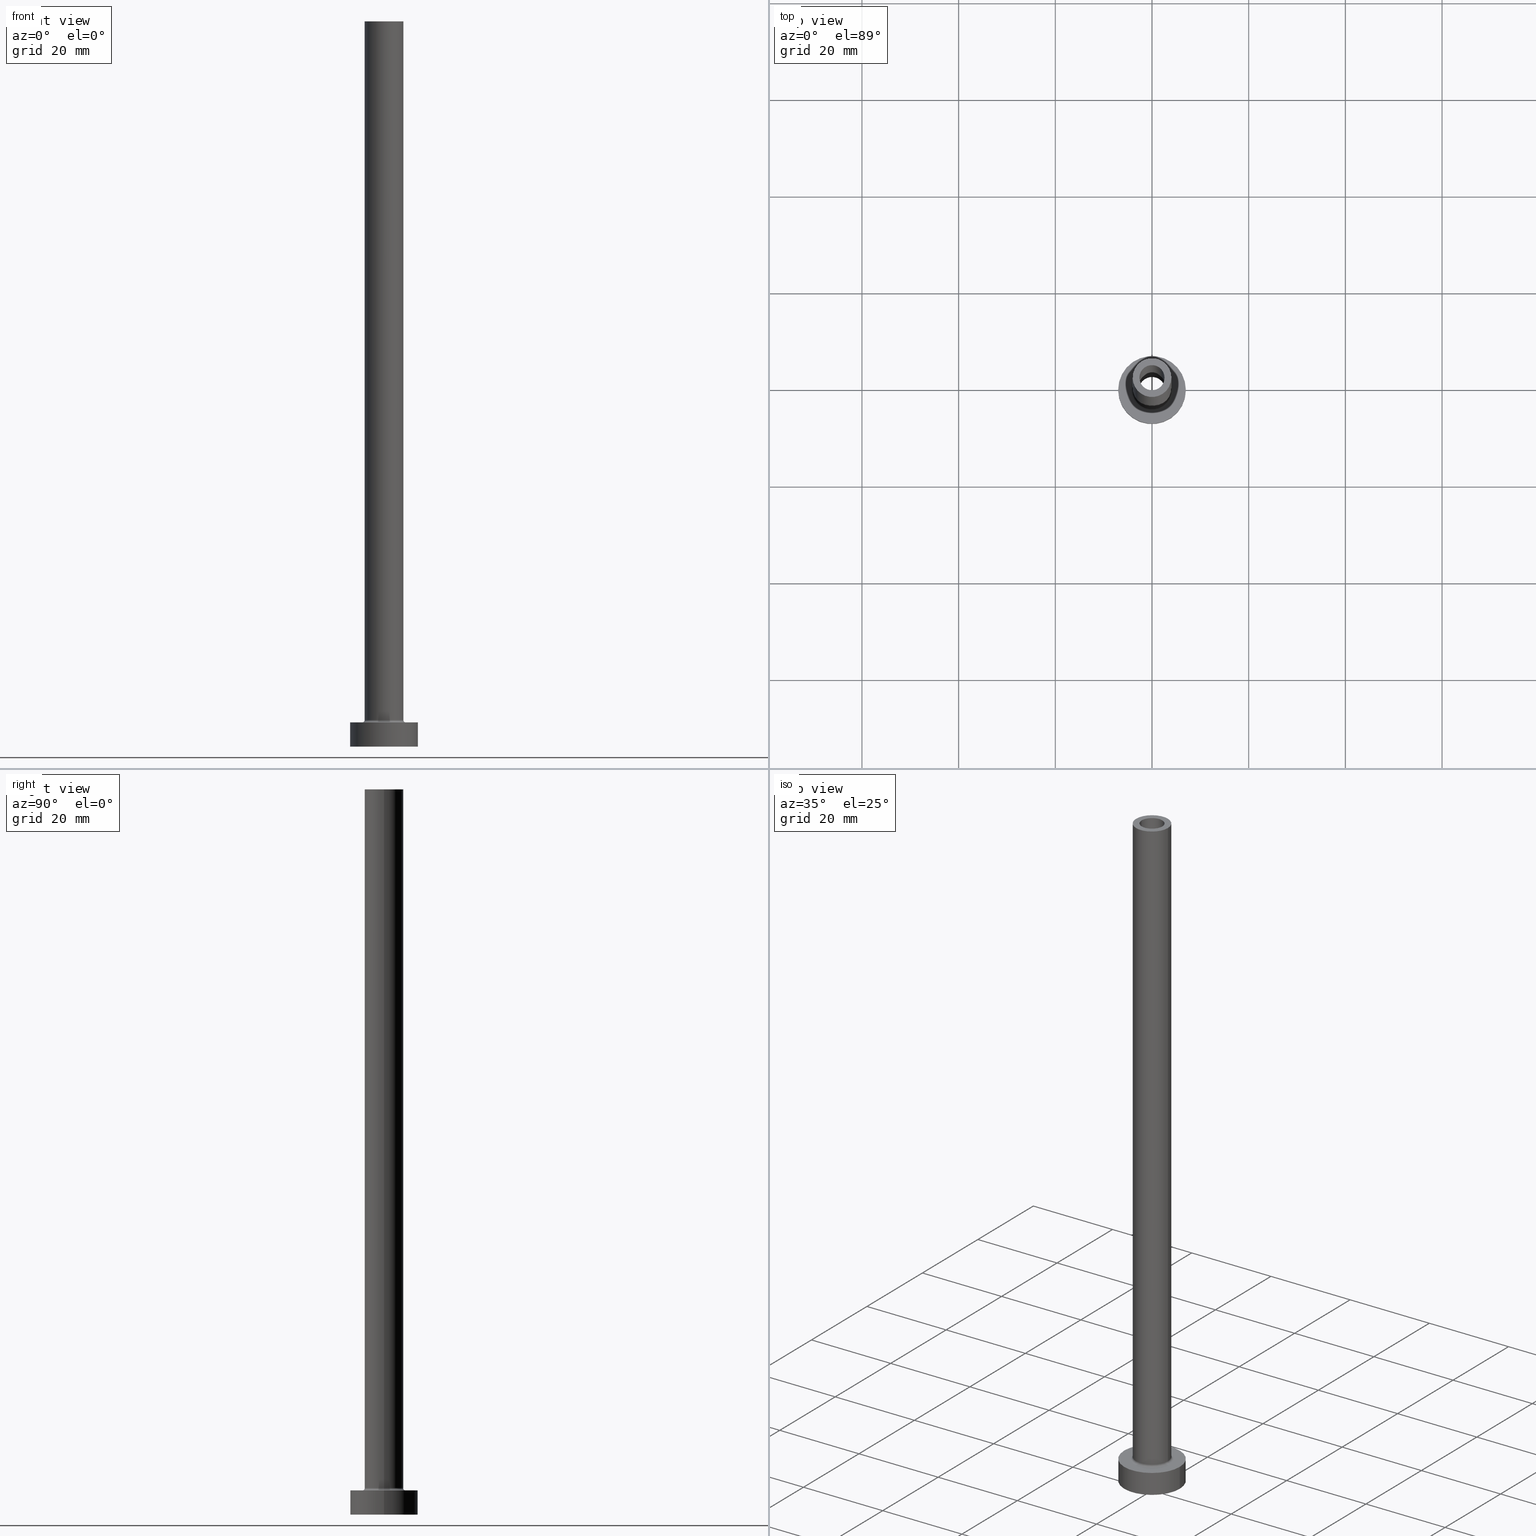
[diagram: canonical four-view strip — front | top / right | iso, engineering-drawing reading convention]
A machine part, canonical four-view strip (front | top / right | iso — engineering-drawing reading convention). The complete STEP part file that produces these views, byte-faithful:
ISO-10303-21;
HEADER;
FILE_DESCRIPTION (( 'STEP AP203' ),
    '1' );
FILE_NAME ('1370.STEP',
    '2023-02-13T10:11:51',
    ( '' ),
    ( '' ),
    'SwSTEP 2.0',
    'SolidWorks 2019',
    '' );
FILE_SCHEMA (( 'CONFIG_CONTROL_DESIGN' ));
ENDSEC;

DATA;
#1 = CARTESIAN_POINT ( 'NONE',  ( 0.000000000000000000, 0.000000000000000000, 112.7781745930520145 ) ) ;
#2 = CC_DESIGN_PERSON_AND_ORGANIZATION_ASSIGNMENT ( #206, #37, ( #59 ) ) ;
#3 = DATE_TIME_ROLE ( 'creation_date' ) ;
#4 = PERSON_AND_ORGANIZATION_ROLE ( 'creator' ) ;
#5 = AXIS2_PLACEMENT_3D ( 'NONE', #391, #203, #311 ) ;
#6 = DIRECTION ( 'NONE',  ( 1.000000000000000000, 0.000000000000000000, -0.000000000000000000 ) ) ;
#7 = DIRECTION ( 'NONE',  ( 1.000000000000000000, 0.000000000000000000, 0.000000000000000000 ) ) ;
#8 = DIRECTION ( 'NONE',  ( -0.000000000000000000, -0.000000000000000000, -1.000000000000000000 ) ) ;
#9 = ORIENTED_EDGE ( 'NONE', *, *, #221, .T. ) ;
#10 = ADVANCED_FACE ( 'NONE', ( #260 ), #224, .F. ) ;
#11 = AXIS2_PLACEMENT_3D ( 'NONE', #190, #47, #333 ) ;
#12 = FACE_BOUND ( 'NONE', #216, .T. ) ;
#13 = EDGE_CURVE ( 'NONE', #273, #239, #70, .T. ) ;
#14 = DIRECTION ( 'NONE',  ( 0.000000000000000000, 0.000000000000000000, -1.000000000000000000 ) ) ;
#15 = DIRECTION ( 'NONE',  ( 0.000000000000000000, 0.000000000000000000, -1.000000000000000000 ) ) ;
#16 = VERTEX_POINT ( 'NONE', #113 ) ;
#17 = ORIENTED_EDGE ( 'NONE', *, *, #166, .T. ) ;
#18 = ORIENTED_EDGE ( 'NONE', *, *, #449, .F. ) ;
#19 = PRODUCT ( '1370', '1370', '', ( #247 ) ) ;
#20 = MANIFOLD_SOLID_BREP ( 'Odebrat vysunut�m4', #413 ) ;
#21 = CARTESIAN_POINT ( 'NONE',  ( -4.000000000000000000, 0.000000000000000000, 150.0000000000000000 ) ) ;
#22 = AXIS2_PLACEMENT_3D ( 'NONE', #354, #320, #288 ) ;
#23 = VECTOR ( 'NONE', #328, 1000.000000000000000 ) ;
#24 = VERTEX_POINT ( 'NONE', #294 ) ;
#25 = CYLINDRICAL_SURFACE ( 'NONE', #455, 2.750000000000000000 ) ;
#26 = DIRECTION ( 'NONE',  ( 1.000000000000000000, 0.000000000000000000, 0.000000000000000000 ) ) ;
#27 = CARTESIAN_POINT ( 'NONE',  ( 4.000000000000000000, 4.898587196589412829E-16, 150.0000000000000000 ) ) ;
#28 = FACE_OUTER_BOUND ( 'NONE', #29, .T. ) ;
#29 = EDGE_LOOP ( 'NONE', ( #262, #278, #376, #243 ) ) ;
#30 = ORIENTED_EDGE ( 'NONE', *, *, #401, .F. ) ;
#31 = CIRCLE ( 'NONE', #422, 2.750000000000000000 ) ;
#32 = CC_DESIGN_APPROVAL ( #198, ( #59 ) ) ;
#33 = FACE_OUTER_BOUND ( 'NONE', #150, .T. ) ;
#34 = EDGE_CURVE ( 'NONE', #397, #344, #330, .T. ) ;
#35 = AXIS2_PLACEMENT_3D ( 'NONE', #364, #253, #77 ) ;
#36 = PERSON_AND_ORGANIZATION ( #439, #339 ) ;
#37 = PERSON_AND_ORGANIZATION_ROLE ( 'design_supplier' ) ;
#38 = DIRECTION ( 'NONE',  ( 0.000000000000000000, 0.000000000000000000, -1.000000000000000000 ) ) ;
#39 = AXIS2_PLACEMENT_3D ( 'NONE', #128, #196, #162 ) ;
#40 = DIRECTION ( 'NONE',  ( 1.000000000000000000, 0.000000000000000000, 0.000000000000000000 ) ) ;
#41 = ADVANCED_FACE ( 'NONE', ( #257 ), #95, .F. ) ;
#42 = DIRECTION ( 'NONE',  ( 0.000000000000000000, 0.000000000000000000, 1.000000000000000000 ) ) ;
#43 = LOCAL_TIME ( 11, 11, 51.00000000000000000, #182 ) ;
#44 = DIRECTION ( 'NONE',  ( 1.000000000000000000, 0.000000000000000000, 0.000000000000000000 ) ) ;
#45 = DIRECTION ( 'NONE',  ( 1.000000000000000000, 0.000000000000000000, -0.000000000000000000 ) ) ;
#46 = ORIENTED_EDGE ( 'NONE', *, *, #154, .F. ) ;
#47 = DIRECTION ( 'NONE',  ( -0.000000000000000000, -0.000000000000000000, -1.000000000000000000 ) ) ;
#48 = DIRECTION ( 'NONE',  ( 0.000000000000000000, 0.000000000000000000, 1.000000000000000000 ) ) ;
#49 = CIRCLE ( 'NONE', #426, 0.5000000000000004441 ) ;
#50 = ADVANCED_FACE ( 'NONE', ( #33 ), #355, .F. ) ;
#51 = CARTESIAN_POINT ( 'NONE',  ( 2.600000000000000089, 3.184081677783117698E-16, 105.0000000000000000 ) ) ;
#52 = ORIENTED_EDGE ( 'NONE', *, *, #362, .T. ) ;
#53 = DIRECTION ( 'NONE',  ( -0.000000000000000000, -0.000000000000000000, -1.000000000000000000 ) ) ;
#54 = VERTEX_POINT ( 'NONE', #217 ) ;
#55 = CARTESIAN_POINT ( 'NONE',  ( 0.000000000000000000, 0.000000000000000000, 112.7781745930520145 ) ) ;
#56 = APPROVAL_STATUS ( 'not_yet_approved' ) ;
#57 = CC_DESIGN_PERSON_AND_ORGANIZATION_ASSIGNMENT ( #214, #4, ( #59 ) ) ;
#58 = DIRECTION ( 'NONE',  ( 1.000000000000000000, 0.000000000000000000, 0.000000000000000000 ) ) ;
#59 = PRODUCT_DEFINITION_FORMATION_WITH_SPECIFIED_SOURCE ( 'LIBOVOLN�', '', #19, .NOT_KNOWN. ) ;
#60 = EDGE_LOOP ( 'NONE', ( #312, #384 ) ) ;
#61 = APPROVAL_DATE_TIME ( #72, #198 ) ;
#62 = ORIENTED_EDGE ( 'NONE', *, *, #212, .F. ) ;
#63 = CYLINDRICAL_SURFACE ( 'NONE', #393, 4.000000000000000000 ) ;
#64 = DIRECTION ( 'NONE',  ( -0.000000000000000000, -0.000000000000000000, -1.000000000000000000 ) ) ;
#65 = DIRECTION ( 'NONE',  ( 1.000000000000000000, 0.000000000000000000, 0.000000000000000000 ) ) ;
#66 = EDGE_CURVE ( 'NONE', #54, #208, #127, .T. ) ;
#67 = DIRECTION ( 'NONE',  ( 1.000000000000000000, 0.000000000000000000, 0.000000000000000000 ) ) ;
#68 = AXIS2_PLACEMENT_3D ( 'NONE', #458, #64, #209 ) ;
#69 = CIRCLE ( 'NONE', #308, 2.600000000000000089 ) ;
#70 = CIRCLE ( 'NONE', #387, 4.500000000000000888 ) ;
#71 = APPROVAL_DATE_TIME ( #180, #338 ) ;
#72 = DATE_AND_TIME ( #99, #43 ) ;
#73 = VERTEX_POINT ( 'NONE', #160 ) ;
#74 = DIRECTION ( 'NONE',  ( -1.000000000000000000, 0.000000000000000000, 0.000000000000000000 ) ) ;
#75 = ADVANCED_FACE ( 'NONE', ( #272 ), #63, .T. ) ;
#76 = CIRCLE ( 'NONE', #255, 2.750000000000000000 ) ;
#77 = DIRECTION ( 'NONE',  ( 1.000000000000000000, 0.000000000000000000, 0.000000000000000000 ) ) ;
#78 = FACE_OUTER_BOUND ( 'NONE', #363, .T. ) ;
#79 = ORIENTED_EDGE ( 'NONE', *, *, #390, .T. ) ;
#80 = CARTESIAN_POINT ( 'NONE',  ( 0.000000000000000000, 0.000000000000000000, 5.000000000000000000 ) ) ;
#81 = CARTESIAN_POINT ( 'NONE',  ( -4.000000000000000000, 0.000000000000000000, 5.500000000000005329 ) ) ;
#82 = ADVANCED_FACE ( 'NONE', ( #277 ), #25, .F. ) ;
#83 = FACE_OUTER_BOUND ( 'NONE', #163, .T. ) ;
#84 = VECTOR ( 'NONE', #8, 1000.000000000000000 ) ;
#85 = DIRECTION ( 'NONE',  ( -0.000000000000000000, -0.000000000000000000, -1.000000000000000000 ) ) ;
#86 = LINE ( 'NONE', #446, #84 ) ;
#87 = VERTEX_POINT ( 'NONE', #460 ) ;
#88 = DIRECTION ( 'NONE',  ( 1.000000000000000000, 0.000000000000000000, -0.000000000000000000 ) ) ;
#89 = ORIENTED_EDGE ( 'NONE', *, *, #323, .F. ) ;
#90 = CARTESIAN_POINT ( 'NONE',  ( 0.000000000000000000, 0.000000000000000000, 5.000000000000000000 ) ) ;
#91 = EDGE_CURVE ( 'NONE', #208, #54, #188, .T. ) ;
#92 = LINE ( 'NONE', #407, #158 ) ;
#93 = AXIS2_PLACEMENT_3D ( 'NONE', #156, #48, #26 ) ;
#94 = ORIENTED_EDGE ( 'NONE', *, *, #459, .F. ) ;
#95 = TOROIDAL_SURFACE ( 'NONE', #205, 4.500000000000000888, 0.5000000000000000000 ) ;
#96 = LINE ( 'NONE', #379, #101 ) ;
#97 = EDGE_CURVE ( 'NONE', #344, #351, #92, .T. ) ;
#98 = DATE_AND_TIME ( #142, #359 ) ;
#99 = CALENDAR_DATE ( 2023, 13, 2 ) ;
#100 = CARTESIAN_POINT ( 'NONE',  ( 0.000000000000000000, 0.000000000000000000, 0.000000000000000000 ) ) ;
#101 = VECTOR ( 'NONE', #53, 1000.000000000000000 ) ;
#102 = AXIS2_PLACEMENT_3D ( 'NONE', #325, #222, #335 ) ;
#103 = ORIENTED_EDGE ( 'NONE', *, *, #323, .T. ) ;
#104 = DIRECTION ( 'NONE',  ( 1.000000000000000000, 0.000000000000000000, 0.000000000000000000 ) ) ;
#105 = APPROVAL_DATE_TIME ( #383, #227 ) ;
#106 = CIRCLE ( 'NONE', #39, 2.600000000000000089 ) ;
#107 = EDGE_LOOP ( 'NONE', ( #450, #89 ) ) ;
#108 = UNCERTAINTY_MEASURE_WITH_UNIT (LENGTH_MEASURE( 1.000000000000000082E-05 ), #334, 'distance_accuracy_value', 'NONE');
#109 = APPLICATION_PROTOCOL_DEFINITION ( 'international standard', 'config_control_design', 1994, #357 ) ;
#110 = CYLINDRICAL_SURFACE ( 'NONE', #452, 2.600000000000000089 ) ;
#111 = EDGE_CURVE ( 'NONE', #24, #172, #31, .T. ) ;
#112 = PERSON_AND_ORGANIZATION_ROLE ( 'classification_officer' ) ;
#113 = CARTESIAN_POINT ( 'NONE',  ( -2.600000000000000089, 0.000000000000000000, 105.0000000000000000 ) ) ;
#114 = AXIS2_PLACEMENT_3D ( 'NONE', #417, #341, #358 ) ;
#115 = DIRECTION ( 'NONE',  ( 0.000000000000000000, 0.000000000000000000, -1.000000000000000000 ) ) ;
#116 = ORIENTED_EDGE ( 'NONE', *, *, #178, .F. ) ;
#117 = DIRECTION ( 'NONE',  ( 0.000000000000000000, 0.000000000000000000, -1.000000000000000000 ) ) ;
#118 = CIRCLE ( 'NONE', #139, 4.500000000000000888 ) ;
#119 = ORIENTED_EDGE ( 'NONE', *, *, #274, .F. ) ;
#120 = AXIS2_PLACEMENT_3D ( 'NONE', #1, #250, #74 ) ;
#121 = DIRECTION ( 'NONE',  ( -1.000000000000000000, 0.000000000000000000, 0.000000000000000000 ) ) ;
#122 = DIRECTION ( 'NONE',  ( 0.000000000000000000, 0.000000000000000000, 1.000000000000000000 ) ) ;
#123 = ADVANCED_FACE ( 'NONE', ( #28 ), #425, .T. ) ;
#124 = PRODUCT_DEFINITION_SHAPE ( 'NONE', 'NONE',  #252 ) ;
#125 = EDGE_LOOP ( 'NONE', ( #193, #200 ) ) ;
#126 = VERTEX_POINT ( 'NONE', #132 ) ;
#127 = CIRCLE ( 'NONE', #305, 4.000000000000000000 ) ;
#128 = CARTESIAN_POINT ( 'NONE',  ( 0.000000000000000000, 0.000000000000000000, 150.0000000000000000 ) ) ;
#129 = DIRECTION ( 'NONE',  ( -1.000000000000000000, 0.000000000000000000, 0.000000000000000000 ) ) ;
#130 = CC_DESIGN_APPROVAL ( #338, ( #233 ) ) ;
#131 = CARTESIAN_POINT ( 'NONE',  ( -4.500000000000000888, 5.510910596163088569E-16, 5.000000000000002665 ) ) ;
#132 = CARTESIAN_POINT ( 'NONE',  ( 7.000000000000000000, 8.572527594031473190E-16, 0.000000000000000000 ) ) ;
#133 = ADVANCED_FACE ( 'NONE', ( #165, #299 ), #263, .F. ) ;
#134 = ORIENTED_EDGE ( 'NONE', *, *, #111, .F. ) ;
#135 = COORDINATED_UNIVERSAL_TIME_OFFSET ( 1, 0, .AHEAD. ) ;
#136 = ORIENTED_EDGE ( 'NONE', *, *, #362, .F. ) ;
#137 = CALENDAR_DATE ( 2023, 13, 2 ) ;
#138 = CC_DESIGN_DATE_AND_TIME_ASSIGNMENT ( #98, #3, ( #252 ) ) ;
#139 = AXIS2_PLACEMENT_3D ( 'NONE', #408, #268, #378 ) ;
#140 = LINE ( 'NONE', #399, #146 ) ;
#141 =( NAMED_UNIT ( * ) SI_UNIT ( $, .STERADIAN. ) SOLID_ANGLE_UNIT ( ) );
#142 = CALENDAR_DATE ( 2023, 13, 2 ) ;
#143 = ORIENTED_EDGE ( 'NONE', *, *, #269, .F. ) ;
#144 = CARTESIAN_POINT ( 'NONE',  ( 0.000000000000000000, 0.000000000000000000, 150.0000000000000000 ) ) ;
#145 = ADVANCED_FACE ( 'NONE', ( #12, #254 ), #148, .T. ) ;
#146 = VECTOR ( 'NONE', #241, 1000.000000000000000 ) ;
#147 = VECTOR ( 'NONE', #117, 1000.000000000000000 ) ;
#148 = PLANE ( 'NONE',  #403 ) ;
#149 = EDGE_LOOP ( 'NONE', ( #143, #245, #223, #226 ) ) ;
#150 = EDGE_LOOP ( 'NONE', ( #46, #234, #349, #52 ) ) ;
#151 = CYLINDRICAL_SURFACE ( 'NONE', #225, 7.000000000000000000 ) ;
#152 = FACE_OUTER_BOUND ( 'NONE', #149, .T. ) ;
#153 = ORIENTED_EDGE ( 'NONE', *, *, #390, .F. ) ;
#154 = EDGE_CURVE ( 'NONE', #172, #73, #372, .T. ) ;
#155 = LOCAL_TIME ( 11, 11, 51.00000000000000000, #201 ) ;
#156 = CARTESIAN_POINT ( 'NONE',  ( 0.000000000000000000, 0.000000000000000000, 5.500000000000005329 ) ) ;
#157 = VECTOR ( 'NONE', #14, 1000.000000000000000 ) ;
#158 = VECTOR ( 'NONE', #229, 1000.000000000000000 ) ;
#159 = EDGE_LOOP ( 'NONE', ( #9, #17 ) ) ;
#160 = CARTESIAN_POINT ( 'NONE',  ( 2.750000000000000000, 3.367778697655221012E-16, 0.000000000000000000 ) ) ;
#161 = ADVANCED_BREP_SHAPE_REPRESENTATION ( '1370', ( #20, #296 ), #286 ) ;
#162 = DIRECTION ( 'NONE',  ( 1.000000000000000000, 0.000000000000000000, 0.000000000000000000 ) ) ;
#163 = EDGE_LOOP ( 'NONE', ( #134, #94 ) ) ;
#164 = CARTESIAN_POINT ( 'NONE',  ( 0.000000000000000000, 0.000000000000000000, 5.500000000000005329 ) ) ;
#165 = FACE_BOUND ( 'NONE', #177, .T. ) ;
#166 = EDGE_CURVE ( 'NONE', #412, #371, #197, .T. ) ;
#167 = DIRECTION ( 'NONE',  ( 0.000000000000000000, 0.000000000000000000, 1.000000000000000000 ) ) ;
#168 = AXIS2_PLACEMENT_3D ( 'NONE', #195, #231, #88 ) ;
#169 = DIRECTION ( 'NONE',  ( 0.000000000000000000, 0.000000000000000000, -1.000000000000000000 ) ) ;
#170 = ORIENTED_EDGE ( 'NONE', *, *, #66, .T. ) ;
#171 = DIRECTION ( 'NONE',  ( 1.000000000000000000, 0.000000000000000000, 0.000000000000000000 ) ) ;
#172 = VERTEX_POINT ( 'NONE', #331 ) ;
#173 = DIRECTION ( 'NONE',  ( -0.000000000000000000, -0.000000000000000000, -1.000000000000000000 ) ) ;
#174 = EDGE_CURVE ( 'NONE', #24, #87, #442, .T. ) ;
#175 = CARTESIAN_POINT ( 'NONE',  ( 4.000000000000000000, 4.898587196589412829E-16, 150.0000000000000000 ) ) ;
#176 = APPROVAL_PERSON_ORGANIZATION ( #430, #227, #249 ) ;
#177 = EDGE_LOOP ( 'NONE', ( #136, #153 ) ) ;
#178 = EDGE_CURVE ( 'NONE', #54, #239, #49, .T. ) ;
#179 = APPROVAL_ROLE ( '' ) ;
#180 = DATE_AND_TIME ( #251, #155 ) ;
#181 = CC_DESIGN_SECURITY_CLASSIFICATION ( #233, ( #59 ) ) ;
#182 = COORDINATED_UNIVERSAL_TIME_OFFSET ( 1, 0, .AHEAD. ) ;
#183 = CARTESIAN_POINT ( 'NONE',  ( 0.000000000000000000, 0.000000000000000000, 5.500000000000005329 ) ) ;
#184 = DIRECTION ( 'NONE',  ( 1.000000000000000000, 0.000000000000000000, 0.000000000000000000 ) ) ;
#185 = ORIENTED_EDGE ( 'NONE', *, *, #380, .T. ) ;
#186 = CARTESIAN_POINT ( 'NONE',  ( 4.500000000000000888, 0.000000000000000000, 5.500000000000005329 ) ) ;
#187 = AXIS2_PLACEMENT_3D ( 'NONE', #443, #445, #40 ) ;
#188 = CIRCLE ( 'NONE', #265, 4.000000000000000000 ) ;
#189 = CARTESIAN_POINT ( 'NONE',  ( 2.750000000000000000, 3.367778697655221012E-16, 112.7781745930520145 ) ) ;
#190 = CARTESIAN_POINT ( 'NONE',  ( 0.000000000000000000, 0.000000000000000000, 0.000000000000000000 ) ) ;
#191 = EDGE_CURVE ( 'NONE', #397, #16, #444, .T. ) ;
#192 = CARTESIAN_POINT ( 'NONE',  ( 0.000000000000000000, 0.000000000000000000, 105.0000000000000000 ) ) ;
#193 = ORIENTED_EDGE ( 'NONE', *, *, #34, .F. ) ;
#194 = AXIS2_PLACEMENT_3D ( 'NONE', #240, #456, #65 ) ;
#195 = CARTESIAN_POINT ( 'NONE',  ( 0.000000000000000000, 0.000000000000000000, 150.0000000000000000 ) ) ;
#196 = DIRECTION ( 'NONE',  ( 0.000000000000000000, 0.000000000000000000, 1.000000000000000000 ) ) ;
#197 = CIRCLE ( 'NONE', #102, 4.000000000000000000 ) ;
#198 = APPROVAL ( #310, 'NEUR�EN�' ) ;
#199 = CARTESIAN_POINT ( 'NONE',  ( -7.000000000000000000, 0.000000000000000000, 0.000000000000000000 ) ) ;
#200 = ORIENTED_EDGE ( 'NONE', *, *, #244, .F. ) ;
#201 = COORDINATED_UNIVERSAL_TIME_OFFSET ( 1, 0, .AHEAD. ) ;
#202 = CIRCLE ( 'NONE', #211, 7.000000000000000000 ) ;
#203 = DIRECTION ( 'NONE',  ( 1.224646799147353207E-16, 1.000000000000000000, -0.000000000000000000 ) ) ;
#204 = EDGE_LOOP ( 'NONE', ( #374, #457, #79, #389 ) ) ;
#205 = AXIS2_PLACEMENT_3D ( 'NONE', #438, #256, #67 ) ;
#206 = PERSON_AND_ORGANIZATION ( #439, #339 ) ;
#207 = ADVANCED_FACE ( 'NONE', ( #152 ), #151, .T. ) ;
#208 = VERTEX_POINT ( 'NONE', #81 ) ;
#209 = DIRECTION ( 'NONE',  ( -1.000000000000000000, 0.000000000000000000, 0.000000000000000000 ) ) ;
#210 = DIRECTION ( 'NONE',  ( 1.000000000000000000, 0.000000000000000000, 0.000000000000000000 ) ) ;
#211 = AXIS2_PLACEMENT_3D ( 'NONE', #409, #381, #210 ) ;
#212 = EDGE_CURVE ( 'NONE', #371, #208, #86, .T. ) ;
#213 = ORIENTED_EDGE ( 'NONE', *, *, #191, .T. ) ;
#214 = PERSON_AND_ORGANIZATION ( #439, #339 ) ;
#215 = CARTESIAN_POINT ( 'NONE',  ( 0.000000000000000000, 0.000000000000000000, 150.0000000000000000 ) ) ;
#216 = EDGE_LOOP ( 'NONE', ( #300, #220 ) ) ;
#217 = CARTESIAN_POINT ( 'NONE',  ( 4.000000000000000000, 4.898587196589412829E-16, 5.500000000000005329 ) ) ;
#218 = CALENDAR_DATE ( 2023, 13, 2 ) ;
#219 = CIRCLE ( 'NONE', #187, 7.000000000000000000 ) ;
#220 = ORIENTED_EDGE ( 'NONE', *, *, #13, .T. ) ;
#221 = EDGE_CURVE ( 'NONE', #371, #412, #329, .T. ) ;
#222 = DIRECTION ( 'NONE',  ( 0.000000000000000000, 0.000000000000000000, 1.000000000000000000 ) ) ;
#223 = ORIENTED_EDGE ( 'NONE', *, *, #401, .T. ) ;
#224 = CYLINDRICAL_SURFACE ( 'NONE', #340, 2.600000000000000089 ) ;
#225 = AXIS2_PLACEMENT_3D ( 'NONE', #302, #405, #303 ) ;
#226 = ORIENTED_EDGE ( 'NONE', *, *, #261, .T. ) ;
#227 = APPROVAL ( #436, 'NEUR�EN�' ) ;
#228 = CARTESIAN_POINT ( 'NONE',  ( 0.000000000000000000, 0.000000000000000000, 5.000000000000000000 ) ) ;
#229 = DIRECTION ( 'NONE',  ( 0.000000000000000000, 0.000000000000000000, -1.000000000000000000 ) ) ;
#230 = CARTESIAN_POINT ( 'NONE',  ( -7.000000000000000000, 0.000000000000000000, 5.000000000000000000 ) ) ;
#231 = DIRECTION ( 'NONE',  ( 0.000000000000000000, 0.000000000000000000, 1.000000000000000000 ) ) ;
#232 = ORIENTED_EDGE ( 'NONE', *, *, #66, .F. ) ;
#233 = SECURITY_CLASSIFICATION ( '', '', #290 ) ;
#234 = ORIENTED_EDGE ( 'NONE', *, *, #459, .T. ) ;
#235 = EDGE_LOOP ( 'NONE', ( #419, #259, #119, #423 ) ) ;
#236 = ORIENTED_EDGE ( 'NONE', *, *, #274, .T. ) ;
#237 = DIRECTION ( 'NONE',  ( 1.000000000000000000, 0.000000000000000000, 0.000000000000000000 ) ) ;
#238 = ADVANCED_FACE ( 'NONE', ( #78 ), #392, .F. ) ;
#239 = VERTEX_POINT ( 'NONE', #309 ) ;
#240 = CARTESIAN_POINT ( 'NONE',  ( 0.000000000000000000, 0.000000000000000000, 0.000000000000000000 ) ) ;
#241 = DIRECTION ( 'NONE',  ( -0.000000000000000000, -0.000000000000000000, -1.000000000000000000 ) ) ;
#242 = VERTEX_POINT ( 'NONE', #307 ) ;
#243 = ORIENTED_EDGE ( 'NONE', *, *, #91, .T. ) ;
#244 = EDGE_CURVE ( 'NONE', #344, #397, #106, .T. ) ;
#245 = ORIENTED_EDGE ( 'NONE', *, *, #414, .F. ) ;
#246 = CIRCLE ( 'NONE', #377, 7.000000000000000000 ) ;
#247 = MECHANICAL_CONTEXT ( 'NONE', #280, 'mechanical' ) ;
#248 = DIRECTION ( 'NONE',  ( 0.000000000000000000, 0.000000000000000000, 1.000000000000000000 ) ) ;
#249 = APPROVAL_ROLE ( '' ) ;
#250 = DIRECTION ( 'NONE',  ( 0.000000000000000000, 0.000000000000000000, -1.000000000000000000 ) ) ;
#251 = CALENDAR_DATE ( 2023, 13, 2 ) ;
#252 = PRODUCT_DEFINITION ( 'NEZN�M�', '', #59, #435 ) ;
#253 = DIRECTION ( 'NONE',  ( 0.000000000000000000, 0.000000000000000000, 1.000000000000000000 ) ) ;
#254 = FACE_OUTER_BOUND ( 'NONE', #60, .T. ) ;
#255 = AXIS2_PLACEMENT_3D ( 'NONE', #284, #317, #104 ) ;
#256 = DIRECTION ( 'NONE',  ( 0.000000000000000000, 0.000000000000000000, 1.000000000000000000 ) ) ;
#257 = FACE_OUTER_BOUND ( 'NONE', #270, .T. ) ;
#258 = CARTESIAN_POINT ( 'NONE',  ( -2.600000000000000089, 0.000000000000000000, 150.0000000000000000 ) ) ;
#259 = ORIENTED_EDGE ( 'NONE', *, *, #97, .T. ) ;
#260 = FACE_OUTER_BOUND ( 'NONE', #297, .T. ) ;
#261 = EDGE_CURVE ( 'NONE', #361, #126, #350, .T. ) ;
#262 = ORIENTED_EDGE ( 'NONE', *, *, #418, .F. ) ;
#263 = PLANE ( 'NONE',  #352 ) ;
#264 = CC_DESIGN_APPROVAL ( #227, ( #252 ) ) ;
#265 = AXIS2_PLACEMENT_3D ( 'NONE', #164, #267, #416 ) ;
#266 = DIRECTION ( 'NONE',  ( 0.000000000000000000, 0.000000000000000000, 1.000000000000000000 ) ) ;
#267 = DIRECTION ( 'NONE',  ( 0.000000000000000000, 0.000000000000000000, 1.000000000000000000 ) ) ;
#268 = DIRECTION ( 'NONE',  ( -0.000000000000000000, -0.000000000000000000, -1.000000000000000000 ) ) ;
#269 = EDGE_CURVE ( 'NONE', #242, #126, #140, .T. ) ;
#270 = EDGE_LOOP ( 'NONE', ( #424, #232, #431, #428 ) ) ;
#271 = CARTESIAN_POINT ( 'NONE',  ( 0.000000000000000000, 0.000000000000000000, 150.0000000000000000 ) ) ;
#272 = FACE_OUTER_BOUND ( 'NONE', #429, .T. ) ;
#273 = VERTEX_POINT ( 'NONE', #131 ) ;
#274 = EDGE_CURVE ( 'NONE', #16, #351, #369, .T. ) ;
#275 = DATE_AND_TIME ( #137, #441 ) ;
#276 = ORIENTED_EDGE ( 'NONE', *, *, #418, .T. ) ;
#277 = FACE_OUTER_BOUND ( 'NONE', #204, .T. ) ;
#278 = ORIENTED_EDGE ( 'NONE', *, *, #221, .F. ) ;
#279 = CIRCLE ( 'NONE', #5, 0.5000000000000004441 ) ;
#280 = APPLICATION_CONTEXT ( 'configuration controlled 3d designs of mechanical parts and assemblies' ) ;
#281 = DIRECTION ( 'NONE',  ( -0.000000000000000000, -0.000000000000000000, -1.000000000000000000 ) ) ;
#282 = CARTESIAN_POINT ( 'NONE',  ( -2.600000000000000089, 0.000000000000000000, 150.0000000000000000 ) ) ;
#283 = CC_DESIGN_PERSON_AND_ORGANIZATION_ASSIGNMENT ( #36, #386, ( #252 ) ) ;
#284 = CARTESIAN_POINT ( 'NONE',  ( 0.000000000000000000, 0.000000000000000000, 105.0000000000000000 ) ) ;
#285 = ORIENTED_EDGE ( 'NONE', *, *, #375, .T. ) ;
#286 =( GEOMETRIC_REPRESENTATION_CONTEXT ( 3 ) GLOBAL_UNCERTAINTY_ASSIGNED_CONTEXT ( ( #108 ) ) GLOBAL_UNIT_ASSIGNED_CONTEXT ( ( #334, #382, #141 ) ) REPRESENTATION_CONTEXT ( 'NONE', 'WORKASPACE' ) );
#287 = APPLICATION_PROTOCOL_DEFINITION ( 'international standard', 'config_control_design', 1994, #280 ) ;
#288 = DIRECTION ( 'NONE',  ( 1.000000000000000000, 0.000000000000000000, 0.000000000000000000 ) ) ;
#289 = ORIENTED_EDGE ( 'NONE', *, *, #166, .F. ) ;
#290 = SECURITY_CLASSIFICATION_LEVEL ( 'unclassified' ) ;
#291 = DIRECTION ( 'NONE',  ( -1.000000000000000000, 0.000000000000000000, 0.000000000000000000 ) ) ;
#292 = CC_DESIGN_PERSON_AND_ORGANIZATION_ASSIGNMENT ( #356, #112, ( #233 ) ) ;
#293 = FACE_OUTER_BOUND ( 'NONE', #159, .T. ) ;
#294 = CARTESIAN_POINT ( 'NONE',  ( -2.750000000000000000, 0.000000000000000000, 105.0000000000000000 ) ) ;
#295 = DIRECTION ( 'NONE',  ( 0.000000000000000000, 0.000000000000000000, 1.000000000000000000 ) ) ;
#296 = AXIS2_PLACEMENT_3D ( 'NONE', #100, #319, #7 ) ;
#297 = EDGE_LOOP ( 'NONE', ( #451, #304, #213, #388 ) ) ;
#298 = ORIENTED_EDGE ( 'NONE', *, *, #91, .F. ) ;
#299 = FACE_OUTER_BOUND ( 'NONE', #107, .T. ) ;
#300 = ORIENTED_EDGE ( 'NONE', *, *, #348, .T. ) ;
#301 = DIRECTION ( 'NONE',  ( 0.000000000000000000, 0.000000000000000000, 1.000000000000000000 ) ) ;
#302 = CARTESIAN_POINT ( 'NONE',  ( 0.000000000000000000, 0.000000000000000000, 5.000000000000000000 ) ) ;
#303 = DIRECTION ( 'NONE',  ( -1.000000000000000000, 0.000000000000000000, 0.000000000000000000 ) ) ;
#304 = ORIENTED_EDGE ( 'NONE', *, *, #244, .T. ) ;
#305 = AXIS2_PLACEMENT_3D ( 'NONE', #183, #301, #332 ) ;
#306 = ADVANCED_FACE ( 'NONE', ( #434 ), #110, .F. ) ;
#307 = CARTESIAN_POINT ( 'NONE',  ( 7.000000000000000000, 8.572527594031473190E-16, 5.000000000000000000 ) ) ;
#308 = AXIS2_PLACEMENT_3D ( 'NONE', #342, #167, #58 ) ;
#309 = CARTESIAN_POINT ( 'NONE',  ( 4.500000000000000888, 0.000000000000000000, 5.000000000000002665 ) ) ;
#310 = APPROVAL_STATUS ( 'not_yet_approved' ) ;
#311 = DIRECTION ( 'NONE',  ( -1.000000000000000000, 1.224646799147351482E-16, 0.000000000000000000 ) ) ;
#312 = ORIENTED_EDGE ( 'NONE', *, *, #414, .T. ) ;
#313 = FACE_BOUND ( 'NONE', #336, .T. ) ;
#314 = ADVANCED_FACE ( 'NONE', ( #373 ), #404, .T. ) ;
#315 = AXIS2_PLACEMENT_3D ( 'NONE', #144, #402, #184 ) ;
#316 = COORDINATED_UNIVERSAL_TIME_OFFSET ( 1, 0, .AHEAD. ) ;
#317 = DIRECTION ( 'NONE',  ( 0.000000000000000000, 0.000000000000000000, 1.000000000000000000 ) ) ;
#318 = CARTESIAN_POINT ( 'NONE',  ( 0.000000000000000000, 0.000000000000000000, 105.0000000000000000 ) ) ;
#319 = DIRECTION ( 'NONE',  ( 0.000000000000000000, 0.000000000000000000, 1.000000000000000000 ) ) ;
#320 = DIRECTION ( 'NONE',  ( 0.000000000000000000, 0.000000000000000000, 1.000000000000000000 ) ) ;
#321 = APPROVAL_PERSON_ORGANIZATION ( #396, #198, #179 ) ;
#322 = SHAPE_DEFINITION_REPRESENTATION ( #124, #161 ) ;
#323 = EDGE_CURVE ( 'NONE', #126, #361, #219, .T. ) ;
#324 = FACE_BOUND ( 'NONE', #125, .T. ) ;
#325 = CARTESIAN_POINT ( 'NONE',  ( 0.000000000000000000, 0.000000000000000000, 150.0000000000000000 ) ) ;
#326 = DIRECTION ( 'NONE',  ( 1.000000000000000000, 0.000000000000000000, -0.000000000000000000 ) ) ;
#327 = PRODUCT_RELATED_PRODUCT_CATEGORY ( 'detail', '', ( #19 ) ) ;
#328 = DIRECTION ( 'NONE',  ( 0.000000000000000000, 0.000000000000000000, -1.000000000000000000 ) ) ;
#329 = CIRCLE ( 'NONE', #315, 4.000000000000000000 ) ;
#330 = CIRCLE ( 'NONE', #35, 2.600000000000000089 ) ;
#331 = CARTESIAN_POINT ( 'NONE',  ( 2.750000000000000000, 3.367778697655221012E-16, 105.0000000000000000 ) ) ;
#332 = DIRECTION ( 'NONE',  ( 1.000000000000000000, 0.000000000000000000, 0.000000000000000000 ) ) ;
#333 = DIRECTION ( 'NONE',  ( 1.000000000000000000, 0.000000000000000000, 0.000000000000000000 ) ) ;
#334 =( LENGTH_UNIT ( ) NAMED_UNIT ( * ) SI_UNIT ( .MILLI., .METRE. ) );
#335 = DIRECTION ( 'NONE',  ( 1.000000000000000000, 0.000000000000000000, 0.000000000000000000 ) ) ;
#336 = EDGE_LOOP ( 'NONE', ( #236, #285 ) ) ;
#337 = CARTESIAN_POINT ( 'NONE',  ( 2.600000000000000089, 3.184081677783117698E-16, 150.0000000000000000 ) ) ;
#338 = APPROVAL ( #56, 'NEUR�EN�' ) ;
#339 = ORGANIZATION ( 'NEUR�EN�', 'NEUR�EN�', '' ) ;
#340 = AXIS2_PLACEMENT_3D ( 'NONE', #415, #15, #121 ) ;
#341 = DIRECTION ( 'NONE',  ( 0.000000000000000000, 0.000000000000000000, 1.000000000000000000 ) ) ;
#342 = CARTESIAN_POINT ( 'NONE',  ( 0.000000000000000000, 0.000000000000000000, 105.0000000000000000 ) ) ;
#343 = ADVANCED_FACE ( 'NONE', ( #324, #293 ), #400, .T. ) ;
#344 = VERTEX_POINT ( 'NONE', #337 ) ;
#345 = VECTOR ( 'NONE', #281, 1000.000000000000000 ) ;
#346 = LINE ( 'NONE', #175, #345 ) ;
#347 = DATE_TIME_ROLE ( 'classification_date' ) ;
#348 = EDGE_CURVE ( 'NONE', #239, #273, #118, .T. ) ;
#349 = ORIENTED_EDGE ( 'NONE', *, *, #174, .T. ) ;
#350 = CIRCLE ( 'NONE', #114, 7.000000000000000000 ) ;
#351 = VERTEX_POINT ( 'NONE', #51 ) ;
#352 = AXIS2_PLACEMENT_3D ( 'NONE', #370, #42, #45 ) ;
#353 = PERSON_AND_ORGANIZATION_ROLE ( 'design_owner' ) ;
#354 = CARTESIAN_POINT ( 'NONE',  ( 0.000000000000000000, 0.000000000000000000, 105.0000000000000000 ) ) ;
#355 = CYLINDRICAL_SURFACE ( 'NONE', #120, 2.750000000000000000 ) ;
#356 = PERSON_AND_ORGANIZATION ( #439, #339 ) ;
#357 = APPLICATION_CONTEXT ( 'configuration controlled 3d designs of mechanical parts and assemblies' ) ;
#358 = DIRECTION ( 'NONE',  ( 1.000000000000000000, 0.000000000000000000, 0.000000000000000000 ) ) ;
#359 = LOCAL_TIME ( 11, 11, 51.00000000000000000, #316 ) ;
#360 = PERSON_AND_ORGANIZATION ( #439, #339 ) ;
#361 = VERTEX_POINT ( 'NONE', #199 ) ;
#362 = EDGE_CURVE ( 'NONE', #87, #73, #461, .T. ) ;
#363 = EDGE_LOOP ( 'NONE', ( #298, #185, #453, #116 ) ) ;
#364 = CARTESIAN_POINT ( 'NONE',  ( 0.000000000000000000, 0.000000000000000000, 150.0000000000000000 ) ) ;
#365 = DIRECTION ( 'NONE',  ( -1.000000000000000000, 0.000000000000000000, 0.000000000000000000 ) ) ;
#366 = VERTEX_POINT ( 'NONE', #230 ) ;
#367 = DIRECTION ( 'NONE',  ( -0.000000000000000000, -0.000000000000000000, -1.000000000000000000 ) ) ;
#368 = PLANE ( 'NONE',  #420 ) ;
#369 = CIRCLE ( 'NONE', #22, 2.600000000000000089 ) ;
#370 = CARTESIAN_POINT ( 'NONE',  ( 0.000000000000000000, 0.000000000000000000, 0.000000000000000000 ) ) ;
#371 = VERTEX_POINT ( 'NONE', #21 ) ;
#372 = LINE ( 'NONE', #189, #147 ) ;
#373 = FACE_OUTER_BOUND ( 'NONE', #406, .T. ) ;
#374 = ORIENTED_EDGE ( 'NONE', *, *, #111, .T. ) ;
#375 = EDGE_CURVE ( 'NONE', #351, #16, #69, .T. ) ;
#376 = ORIENTED_EDGE ( 'NONE', *, *, #212, .T. ) ;
#377 = AXIS2_PLACEMENT_3D ( 'NONE', #447, #266, #171 ) ;
#378 = DIRECTION ( 'NONE',  ( 1.000000000000000000, 0.000000000000000000, 0.000000000000000000 ) ) ;
#379 = CARTESIAN_POINT ( 'NONE',  ( -7.000000000000000000, 0.000000000000000000, 5.000000000000000000 ) ) ;
#380 = EDGE_CURVE ( 'NONE', #208, #273, #279, .T. ) ;
#381 = DIRECTION ( 'NONE',  ( 0.000000000000000000, 0.000000000000000000, 1.000000000000000000 ) ) ;
#382 =( NAMED_UNIT ( * ) PLANE_ANGLE_UNIT ( ) SI_UNIT ( $, .RADIAN. ) );
#383 = DATE_AND_TIME ( #218, #410 ) ;
#384 = ORIENTED_EDGE ( 'NONE', *, *, #449, .T. ) ;
#385 = APPROVAL_PERSON_ORGANIZATION ( #433, #338, #398 ) ;
#386 = PERSON_AND_ORGANIZATION_ROLE ( 'creator' ) ;
#387 = AXIS2_PLACEMENT_3D ( 'NONE', #90, #367, #44 ) ;
#388 = ORIENTED_EDGE ( 'NONE', *, *, #375, .F. ) ;
#389 = ORIENTED_EDGE ( 'NONE', *, *, #174, .F. ) ;
#390 = EDGE_CURVE ( 'NONE', #73, #87, #432, .T. ) ;
#391 = CARTESIAN_POINT ( 'NONE',  ( -4.500000000000000888, 5.510910596163089556E-16, 5.500000000000005329 ) ) ;
#392 = TOROIDAL_SURFACE ( 'NONE', #93, 4.500000000000000888, 0.5000000000000000000 ) ;
#393 = AXIS2_PLACEMENT_3D ( 'NONE', #271, #173, #421 ) ;
#394 = COORDINATED_UNIVERSAL_TIME_OFFSET ( 1, 0, .AHEAD. ) ;
#395 = CC_DESIGN_PERSON_AND_ORGANIZATION_ASSIGNMENT ( #360, #353, ( #19 ) ) ;
#396 = PERSON_AND_ORGANIZATION ( #439, #339 ) ;
#397 = VERTEX_POINT ( 'NONE', #282 ) ;
#398 = APPROVAL_ROLE ( '' ) ;
#399 = CARTESIAN_POINT ( 'NONE',  ( 7.000000000000000000, 8.572527594031473190E-16, 5.000000000000000000 ) ) ;
#400 = PLANE ( 'NONE',  #168 ) ;
#401 = EDGE_CURVE ( 'NONE', #366, #361, #96, .T. ) ;
#402 = DIRECTION ( 'NONE',  ( 0.000000000000000000, 0.000000000000000000, 1.000000000000000000 ) ) ;
#403 = AXIS2_PLACEMENT_3D ( 'NONE', #228, #295, #326 ) ;
#404 = CYLINDRICAL_SURFACE ( 'NONE', #454, 7.000000000000000000 ) ;
#405 = DIRECTION ( 'NONE',  ( -0.000000000000000000, -0.000000000000000000, -1.000000000000000000 ) ) ;
#406 = EDGE_LOOP ( 'NONE', ( #18, #448, #103, #30 ) ) ;
#407 = CARTESIAN_POINT ( 'NONE',  ( 2.600000000000000089, 3.184081677783117698E-16, 150.0000000000000000 ) ) ;
#408 = CARTESIAN_POINT ( 'NONE',  ( 0.000000000000000000, 0.000000000000000000, 5.000000000000000000 ) ) ;
#409 = CARTESIAN_POINT ( 'NONE',  ( 0.000000000000000000, 0.000000000000000000, 5.000000000000000000 ) ) ;
#410 = LOCAL_TIME ( 11, 11, 51.00000000000000000, #394 ) ;
#411 = DIRECTION ( 'NONE',  ( 0.000000000000000000, -1.000000000000000000, 0.000000000000000000 ) ) ;
#412 = VERTEX_POINT ( 'NONE', #27 ) ;
#413 = CLOSED_SHELL ( 'NONE', ( #306, #82, #238, #75, #314, #207, #145, #133, #123, #343, #41, #50, #440, #10 ) ) ;
#414 = EDGE_CURVE ( 'NONE', #366, #242, #246, .T. ) ;
#415 = CARTESIAN_POINT ( 'NONE',  ( 0.000000000000000000, 0.000000000000000000, 150.0000000000000000 ) ) ;
#416 = DIRECTION ( 'NONE',  ( 1.000000000000000000, 0.000000000000000000, 0.000000000000000000 ) ) ;
#417 = CARTESIAN_POINT ( 'NONE',  ( 0.000000000000000000, 0.000000000000000000, 0.000000000000000000 ) ) ;
#418 = EDGE_CURVE ( 'NONE', #412, #54, #346, .T. ) ;
#419 = ORIENTED_EDGE ( 'NONE', *, *, #34, .T. ) ;
#420 = AXIS2_PLACEMENT_3D ( 'NONE', #318, #248, #6 ) ;
#421 = DIRECTION ( 'NONE',  ( -1.000000000000000000, 0.000000000000000000, 0.000000000000000000 ) ) ;
#422 = AXIS2_PLACEMENT_3D ( 'NONE', #192, #122, #237 ) ;
#423 = ORIENTED_EDGE ( 'NONE', *, *, #191, .F. ) ;
#424 = ORIENTED_EDGE ( 'NONE', *, *, #380, .F. ) ;
#425 = CYLINDRICAL_SURFACE ( 'NONE', #68, 4.000000000000000000 ) ;
#426 = AXIS2_PLACEMENT_3D ( 'NONE', #186, #411, #115 ) ;
#427 = CC_DESIGN_DATE_AND_TIME_ASSIGNMENT ( #275, #347, ( #233 ) ) ;
#428 = ORIENTED_EDGE ( 'NONE', *, *, #13, .F. ) ;
#429 = EDGE_LOOP ( 'NONE', ( #289, #276, #170, #62 ) ) ;
#430 = PERSON_AND_ORGANIZATION ( #439, #339 ) ;
#431 = ORIENTED_EDGE ( 'NONE', *, *, #178, .T. ) ;
#432 = CIRCLE ( 'NONE', #194, 2.750000000000000000 ) ;
#433 = PERSON_AND_ORGANIZATION ( #439, #339 ) ;
#434 = FACE_OUTER_BOUND ( 'NONE', #235, .T. ) ;
#435 = DESIGN_CONTEXT ( 'detailed design', #357, 'design' ) ;
#436 = APPROVAL_STATUS ( 'not_yet_approved' ) ;
#437 = CARTESIAN_POINT ( 'NONE',  ( -2.750000000000000000, 0.000000000000000000, 112.7781745930520145 ) ) ;
#438 = CARTESIAN_POINT ( 'NONE',  ( 0.000000000000000000, 0.000000000000000000, 5.500000000000005329 ) ) ;
#439 = PERSON ( 'NEUR�EN�', 'NEUR�EN�', 'NEUR�EN�', ('NEUR�EN�'), ('NEUR�EN�'), ('NEUR�EN�') ) ;
#440 = ADVANCED_FACE ( 'NONE', ( #313, #83 ), #368, .F. ) ;
#441 = LOCAL_TIME ( 11, 11, 51.00000000000000000, #135 ) ;
#442 = LINE ( 'NONE', #437, #157 ) ;
#443 = CARTESIAN_POINT ( 'NONE',  ( 0.000000000000000000, 0.000000000000000000, 0.000000000000000000 ) ) ;
#444 = LINE ( 'NONE', #258, #23 ) ;
#445 = DIRECTION ( 'NONE',  ( 0.000000000000000000, 0.000000000000000000, 1.000000000000000000 ) ) ;
#446 = CARTESIAN_POINT ( 'NONE',  ( -4.000000000000000000, 0.000000000000000000, 150.0000000000000000 ) ) ;
#447 = CARTESIAN_POINT ( 'NONE',  ( 0.000000000000000000, 0.000000000000000000, 5.000000000000000000 ) ) ;
#448 = ORIENTED_EDGE ( 'NONE', *, *, #269, .T. ) ;
#449 = EDGE_CURVE ( 'NONE', #242, #366, #202, .T. ) ;
#450 = ORIENTED_EDGE ( 'NONE', *, *, #261, .F. ) ;
#451 = ORIENTED_EDGE ( 'NONE', *, *, #97, .F. ) ;
#452 = AXIS2_PLACEMENT_3D ( 'NONE', #215, #38, #291 ) ;
#453 = ORIENTED_EDGE ( 'NONE', *, *, #348, .F. ) ;
#454 = AXIS2_PLACEMENT_3D ( 'NONE', #80, #85, #365 ) ;
#455 = AXIS2_PLACEMENT_3D ( 'NONE', #55, #169, #129 ) ;
#456 = DIRECTION ( 'NONE',  ( -0.000000000000000000, -0.000000000000000000, -1.000000000000000000 ) ) ;
#457 = ORIENTED_EDGE ( 'NONE', *, *, #154, .T. ) ;
#458 = CARTESIAN_POINT ( 'NONE',  ( 0.000000000000000000, 0.000000000000000000, 150.0000000000000000 ) ) ;
#459 = EDGE_CURVE ( 'NONE', #172, #24, #76, .T. ) ;
#460 = CARTESIAN_POINT ( 'NONE',  ( -2.750000000000000000, 0.000000000000000000, 0.000000000000000000 ) ) ;
#461 = CIRCLE ( 'NONE', #11, 2.750000000000000000 ) ;
ENDSEC;
END-ISO-10303-21;
